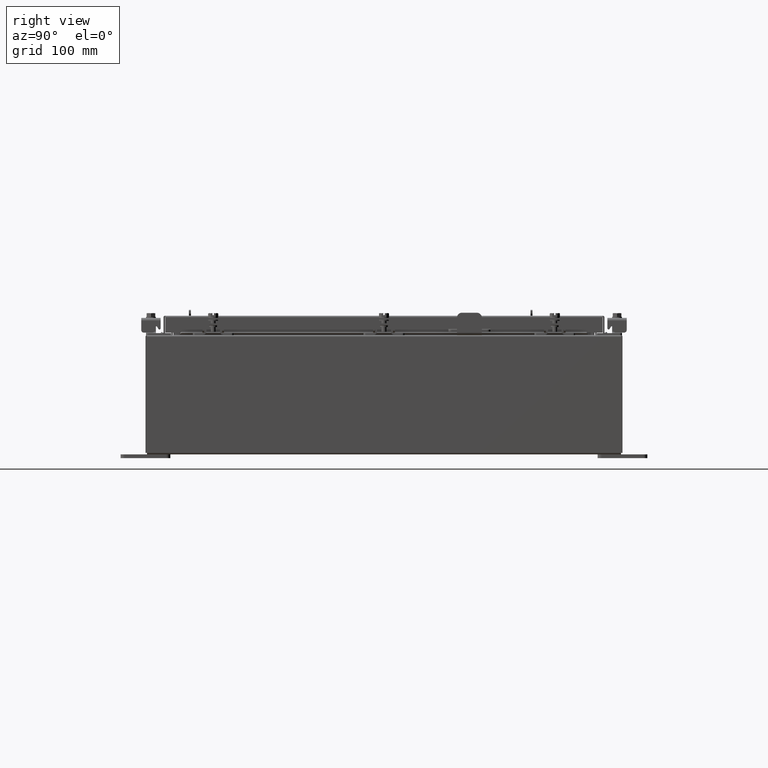
[diagram: clean part render]
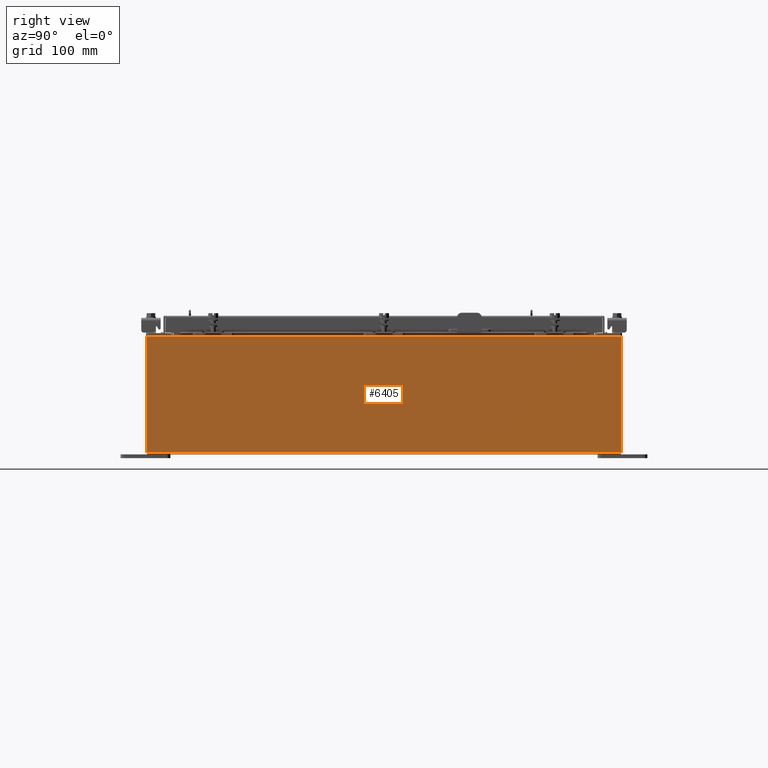
[diagram: same view with one face highlighted and labeled with its STEP entity id]
A machine part, right view. The second image highlights one B-rep face of the part: STEP entity #6405.
In plain terms, the highlighted planar face has unit normal (-1, 0, 0).
Its self-contained STEP definition (entity closure, byte-faithful):
#262 = LINE ( 'NONE', #20224, #5383 ) ;
#480 = ORIENTED_EDGE ( 'NONE', *, *, #19316, .T. ) ;
#562 = LINE ( 'NONE', #20603, #9260 ) ;
#1754 = DIRECTION ( 'NONE',  ( -3.319545939341922800E-015, 0.0000000000000000000, -1.000000000000000000 ) ) ;
#3103 = PLANE ( 'NONE',  #15032 ) ;
#3324 = CARTESIAN_POINT ( 'NONE',  ( 12.00000000000001800, -11.92530000000000400, 5.837600000000001000 ) ) ;
#3552 = VERTEX_POINT ( 'NONE', #7590 ) ;
#4574 = DIRECTION ( 'NONE',  ( -0.0000000000000000000, -1.000000000000000000, -0.0000000000000000000 ) ) ;
#5383 = VECTOR ( 'NONE', #4574, 39.37007874015748100 ) ;
#5623 = VECTOR ( 'NONE', #19009, 39.37007874015748100 ) ;
#5685 = EDGE_LOOP ( 'NONE', ( #6937, #18938, #16960, #480 ) ) ;
#6405 = ADVANCED_FACE ( 'NONE', ( #19258 ), #3103, .F. ) ;
#6722 = DIRECTION ( 'NONE',  ( -0.0000000000000000000, -1.000000000000000000, -0.0000000000000000000 ) ) ;
#6798 = CARTESIAN_POINT ( 'NONE',  ( 11.99999999999999800, 11.92529999999999800, -4.009536492811464200E-014 ) ) ;
#6937 = ORIENTED_EDGE ( 'NONE', *, *, #10131, .T. ) ;
#7590 = CARTESIAN_POINT ( 'NONE',  ( 11.99999999999999800, 11.92529999999999600, 0.01299999999999986400 ) ) ;
#8371 = CARTESIAN_POINT ( 'NONE',  ( 11.99999999999999800, 0.0000000000000000000, -4.009536492811464200E-014 ) ) ;
#8628 = VERTEX_POINT ( 'NONE', #3324 ) ;
#9260 = VECTOR ( 'NONE', #6722, 39.37007874015748100 ) ;
#9299 = EDGE_CURVE ( 'NONE', #3552, #13585, #562, .T. ) ;
#9765 = VECTOR ( 'NONE', #1754, 39.37007874015748100 ) ;
#10124 = DIRECTION ( 'NONE',  ( -1.000000000000000000, 0.0000000000000000000, 3.319545939341922000E-015 ) ) ;
#10131 = EDGE_CURVE ( 'NONE', #22365, #8628, #262, .T. ) ;
#10345 = EDGE_CURVE ( 'NONE', #8628, #13585, #14384, .T. ) ;
#12236 = CARTESIAN_POINT ( 'NONE',  ( 11.99999999999999800, -11.92530000000000400, -4.009536492811464200E-014 ) ) ;
#13585 = VERTEX_POINT ( 'NONE', #14459 ) ;
#14384 = LINE ( 'NONE', #12236, #9765 ) ;
#14459 = CARTESIAN_POINT ( 'NONE',  ( 11.99999999999999800, -11.92530000000000400, 0.01299999999999985900 ) ) ;
#14525 = CARTESIAN_POINT ( 'NONE',  ( 12.00000000000001800, 11.92529999999999600, 5.837600000000001000 ) ) ;
#15032 = AXIS2_PLACEMENT_3D ( 'NONE', #8371, #10124, #22343 ) ;
#16960 = ORIENTED_EDGE ( 'NONE', *, *, #9299, .F. ) ;
#18938 = ORIENTED_EDGE ( 'NONE', *, *, #10345, .T. ) ;
#19009 = DIRECTION ( 'NONE',  ( 3.319545939341922800E-015, 0.0000000000000000000, 1.000000000000000000 ) ) ;
#19258 = FACE_OUTER_BOUND ( 'NONE', #5685, .T. ) ;
#19316 = EDGE_CURVE ( 'NONE', #3552, #22365, #20651, .T. ) ;
#20224 = CARTESIAN_POINT ( 'NONE',  ( 12.00000000000001800, 11.92529999999999800, 5.837600000000001000 ) ) ;
#20603 = CARTESIAN_POINT ( 'NONE',  ( 11.99999999999999800, -11.92530000000000400, 0.01299999999999986400 ) ) ;
#20651 = LINE ( 'NONE', #6798, #5623 ) ;
#22343 = DIRECTION ( 'NONE',  ( 3.319545939341922000E-015, 0.0000000000000000000, 1.000000000000000000 ) ) ;
#22365 = VERTEX_POINT ( 'NONE', #14525 ) ;